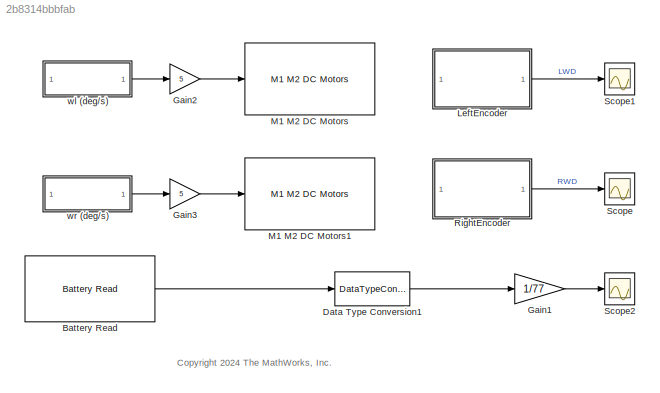
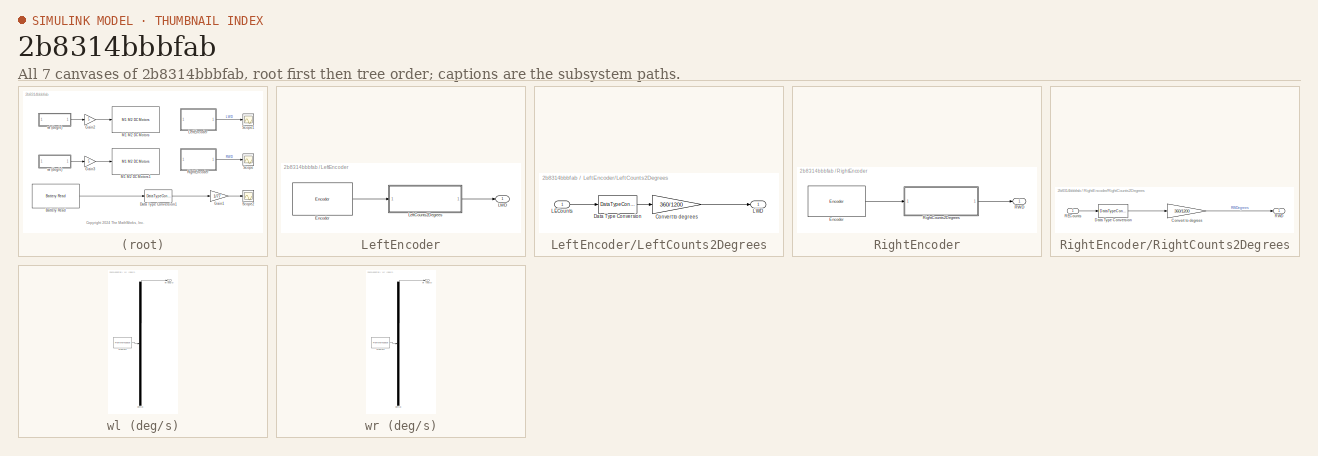
[diagram: thumbnail index - all 7 canvases of the model, root first then tree order]
MODEL slx_2b8314bbbfab
KIND model
CONFIG AbsTol = auto
CONFIG EnableMultiTasking = on
CONFIG FixedStep = TS
CONFIG MaxStep = auto
CONFIG MinStep = auto
CONFIG PostLoadFcn = paramsBasicKinematics
CONFIG RelTol = 1e-3
CONFIG SampleTimeConstraint = Unconstrained
CONFIG SolverName = FixedStepAuto
CONFIG StartTime = 0.0
CONFIG StopTime = 15
BLOCK [Reference] Battery Read  REF=arduinomotorcarrierlib/Battery Read
  SourceBlock = arduinomotorcarrierlib/Battery Read
  SourceType = motorcarrier.blocks.mkrmotorcarrier_Battery
BLOCK [DataTypeConversion] Data Type Conversion1
  RndMeth = Floor
  SaturateOnIntegerOverflow = off
BLOCK [Gain] Gain1
  Gain = 1/77
BLOCK [Gain] Gain2
  Gain = 5
BLOCK [Gain] Gain3
  Gain = 5
BLOCK [SubSystem] LeftEncoder
BLOCK [Reference] LeftEncoder/Encoder  REF=arduinomotorcarrierlib/Encoder
  SourceBlock = arduinomotorcarrierlib/Encoder
  SourceType = motorcarrier.blocks.mkrmotorcarrier_Encoder
BLOCK [Outport] LeftEncoder/LWD
  VectorParamsAs1DForOutWhenUnconnected = off
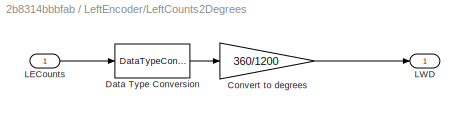
BLOCK [SubSystem] LeftEncoder/LeftCounts2Degrees
BLOCK [Gain] LeftEncoder/LeftCounts2Degrees/Convert to degrees
  Gain = 360/1200
BLOCK [DataTypeConversion] LeftEncoder/LeftCounts2Degrees/Data Type Conversion
  OutDataTypeStr = double
  RndMeth = Floor
  SaturateOnIntegerOverflow = off
BLOCK [Inport] LeftEncoder/LeftCounts2Degrees/LECounts
BLOCK [Outport] LeftEncoder/LeftCounts2Degrees/LWD
  VectorParamsAs1DForOutWhenUnconnected = off
BLOCK [Reference] M1 M2 DC Motors  REF=arduinomotorcarrierlib/M1 M2 DC Motors
  SourceBlock = arduinomotorcarrierlib/M1 M2 DC Motors
  SourceType = DC Motor
BLOCK [Reference] M1 M2 DC Motors1  REF=arduinomotorcarrierlib/M1 M2 DC Motors
  SourceBlock = arduinomotorcarrierlib/M1 M2 DC Motors
  SourceType = DC Motor
BLOCK [SubSystem] RightEncoder
BLOCK [Reference] RightEncoder/Encoder  REF=arduinomotorcarrierlib/Encoder
  SourceBlock = arduinomotorcarrierlib/Encoder
  SourceType = motorcarrier.blocks.mkrmotorcarrier_Encoder
BLOCK [Outport] RightEncoder/RWD
  VectorParamsAs1DForOutWhenUnconnected = off
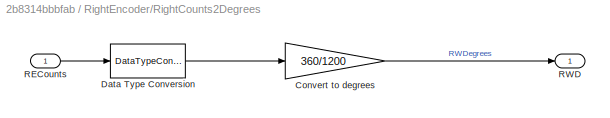
BLOCK [SubSystem] RightEncoder/RightCounts2Degrees
BLOCK [Gain] RightEncoder/RightCounts2Degrees/Convert to degrees
  Gain = 360/1200
BLOCK [DataTypeConversion] RightEncoder/RightCounts2Degrees/Data Type Conversion
  OutDataTypeStr = double
  RndMeth = Floor
  SaturateOnIntegerOverflow = off
BLOCK [Inport] RightEncoder/RightCounts2Degrees/RECounts
BLOCK [Outport] RightEncoder/RightCounts2Degrees/RWD
  VectorParamsAs1DForOutWhenUnconnected = off
BLOCK [Scope] Scope
  Floating = off
  NumInputPorts = 1
  ScopeSpecificationString = Simulink.scopes.TimeScopeBlockCfg('CurrentConfiguration', extmgr.ConfigurationSet(extmgr.Configuration('Core','General UI',true),extmgr.Configuration('Core','Source UI',true),extmgr.Configuration('Sources','WiredSimulink',true),extmgr.Configuration('Visuals','Time Domain',true,'SerializedDisplays',{struct('MinYLimReal','-113.84129','MaxYLimReal','1024.57159','YLabelReal','','MinYLimMag',' 0.00000'...<+1484ch>
BLOCK [Scope] Scope1
  Floating = off
  NumInputPorts = 1
  ScopeSpecificationString = Simulink.scopes.TimeScopeBlockCfg('CurrentConfiguration', extmgr.ConfigurationSet(extmgr.Configuration('Core','General UI',true),extmgr.Configuration('Core','Source UI',true),extmgr.Configuration('Sources','WiredSimulink',true,'DataLoggingVariableName','ScopeData1'),extmgr.Configuration('Visuals','Time Domain',true,'SerializedDisplays',{struct('MinYLimReal','-930.56939','MaxYLimReal','8375.12454',...<+1522ch>
BLOCK [Scope] Scope2
  Floating = off
  NumInputPorts = 1
  ScopeSpecificationString = Simulink.scopes.TimeScopeBlockCfg('CurrentConfiguration', extmgr.ConfigurationSet(extmgr.Configuration('Core','General UI',true),extmgr.Configuration('Core','Source UI',true),extmgr.Configuration('Sources','WiredSimulink',true,'DataLoggingVariableName','ScopeData1'),extmgr.Configuration('Visuals','Time Domain',true,'SerializedDisplays',{struct('MinYLimReal','-113.5','MaxYLimReal','1021.5','YLabelR...<+1394ch>
BLOCK [SubSystem] wl (deg//s)
  ClipboardFcn = sigbuilder_block('clipboard');
  CloseFcn = sigbuilder_block('close');
  ContinueFcn = sigbuilder_block('continue');
  CopyFcn = sigbuilder_block('copy');
  DeleteFcn = sigbuilder_block('delete');
  LoadFcn = sigbuilder_block('load');
  MaskHideContents = on
  ModelCloseFcn = sigbuilder_block('modelClose');
  NameChangeFcn = sigbuilder_block('namechange');
  OpenFcn = sigbuilder_block('open',[414.75 180 960 455.25 ]);
  PauseFcn = sigbuilder_block('pause');
  PreSaveFcn = sigbuilder_block('preSave');
  StartFcn = sigbuilder_block('start');
  StopFcn = sigbuilder_block('stop');
  Tag = STV Subsys
BLOCK [Demux] wl (deg//s)/Demux
  DisplayOption = none
  Outputs = 1
  Tag = STV Demux
BLOCK [FromWorkspace] wl (deg//s)/FromWs
  Tag = STV FromWs
  VariableName = tuvar
BLOCK [Outport] wl (deg//s)/wl (deg//s)
  Tag = STV Outport
  VectorParamsAs1DForOutWhenUnconnected = off
BLOCK [SubSystem] wr (deg//s)
  ClipboardFcn = sigbuilder_block('clipboard');
  CloseFcn = sigbuilder_block('close');
  ContinueFcn = sigbuilder_block('continue');
  CopyFcn = sigbuilder_block('copy');
  DeleteFcn = sigbuilder_block('delete');
  LoadFcn = sigbuilder_block('load');
  MaskHideContents = on
  ModelCloseFcn = sigbuilder_block('modelClose');
  NameChangeFcn = sigbuilder_block('namechange');
  OpenFcn = sigbuilder_block('open',[480 144 954 411 ]);
  PauseFcn = sigbuilder_block('pause');
  PreSaveFcn = sigbuilder_block('preSave');
  StartFcn = sigbuilder_block('start');
  StopFcn = sigbuilder_block('stop');
  Tag = STV Subsys
BLOCK [Demux] wr (deg//s)/Demux
  DisplayOption = none
  Outputs = 1
  Tag = STV Demux
BLOCK [FromWorkspace] wr (deg//s)/FromWs
  Tag = STV FromWs
  VariableName = tuvar
BLOCK [Outport] wr (deg//s)/wr (deg//s)
  Tag = STV Outport
  VectorParamsAs1DForOutWhenUnconnected = off
ANNOTATION (root): <copyright redacted>
LINE Battery Read:1 -> Data Type Conversion1:1
LINE Data Type Conversion1:1 -> Gain1:1
LINE Gain1:1 -> Scope2:1
LINE Gain2:1 -> M1 M2 DC Motors:1
LINE Gain3:1 -> M1 M2 DC Motors1:1
LINE LeftEncoder/Encoder:1 -> LeftEncoder/LeftCounts2Degrees:1
LINE LeftEncoder/LeftCounts2Degrees/Convert to degrees:1 -> LeftEncoder/LeftCounts2Degrees/LWD:1
LINE LeftEncoder/LeftCounts2Degrees/Data Type Conversion:1 -> LeftEncoder/LeftCounts2Degrees/Convert to degrees:1
LINE LeftEncoder/LeftCounts2Degrees/LECounts:1 -> LeftEncoder/LeftCounts2Degrees/Data Type Conversion:1
LINE LeftEncoder/LeftCounts2Degrees:1 -> LeftEncoder/LWD:1
LINE LeftEncoder:1 -> Scope1:1
LINE RightEncoder/Encoder:1 -> RightEncoder/RightCounts2Degrees:1
LINE RightEncoder/RightCounts2Degrees/Convert to degrees:1 -> RightEncoder/RightCounts2Degrees/RWD:1
LINE RightEncoder/RightCounts2Degrees/Data Type Conversion:1 -> RightEncoder/RightCounts2Degrees/Convert to degrees:1
LINE RightEncoder/RightCounts2Degrees/RECounts:1 -> RightEncoder/RightCounts2Degrees/Data Type Conversion:1
LINE RightEncoder/RightCounts2Degrees:1 -> RightEncoder/RWD:1
LINE RightEncoder:1 -> Scope:1
LINE wl (deg//s):1 -> Gain2:1
LINE wr (deg//s):1 -> Gain3:1
